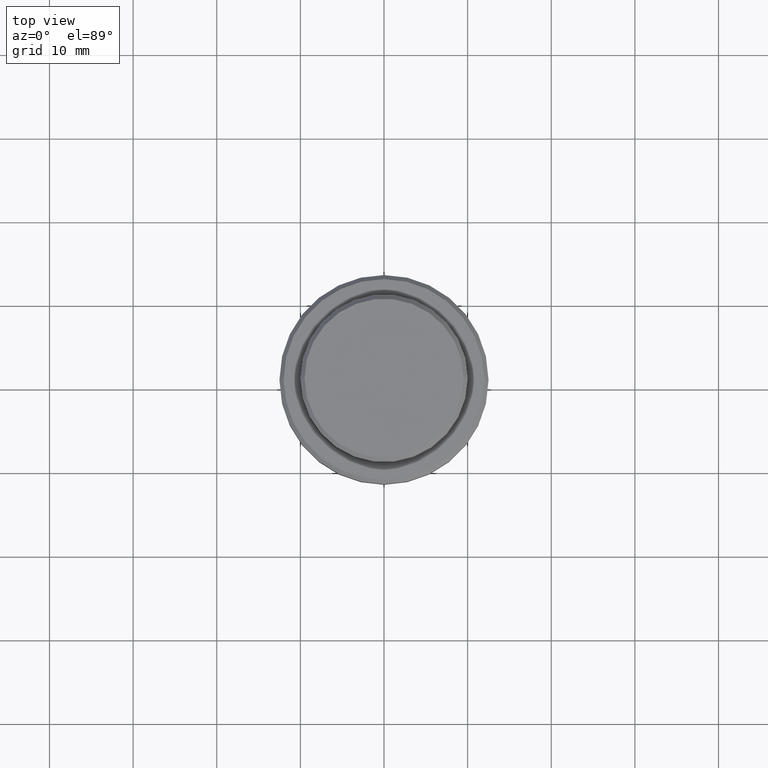
[diagram: clean part render]
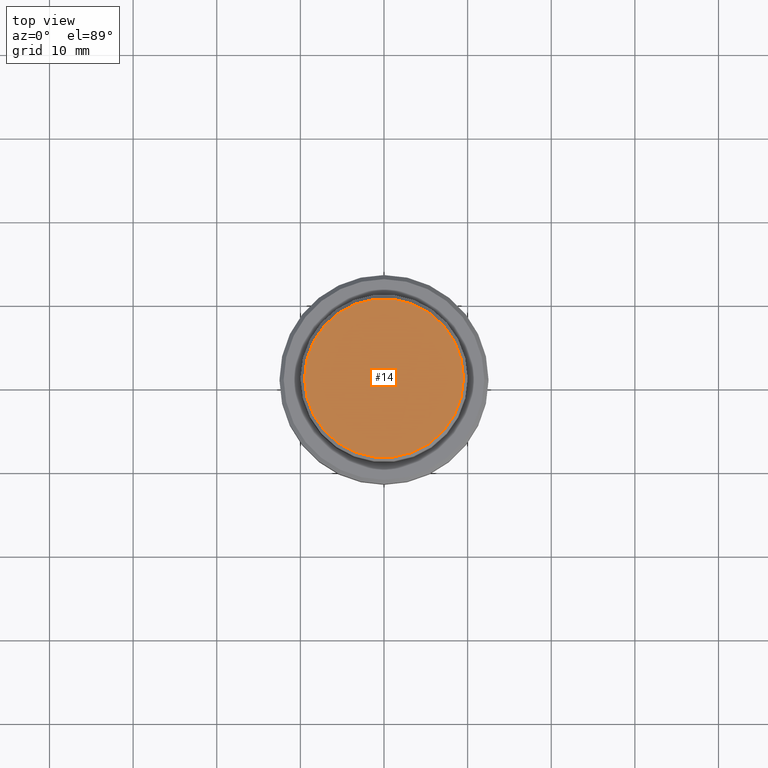
[diagram: same view with one face highlighted and labeled with its STEP entity id]
A machine part, top view. The second image highlights one B-rep face of the part: STEP entity #14.
In plain terms, the highlighted planar face has unit normal (0, -0, 1).
Its self-contained STEP definition (entity closure, byte-faithful):
#12 = AXIS2_PLACEMENT_3D ( 'NONE', #640, #874, #653 ) ;
#14 = ADVANCED_FACE ( 'NONE', ( #1391 ), #1269, .T. ) ;
#77 = CARTESIAN_POINT ( 'NONE',  ( -9.500000000000001776, 0.000000000000000000, 0.000000000000000000 ) ) ;
#151 = DIRECTION ( 'NONE',  ( 1.000000000000000000, 0.000000000000000000, 0.000000000000000000 ) ) ;
#155 = DIRECTION ( 'NONE',  ( 1.000000000000000000, 0.000000000000000000, 0.000000000000000000 ) ) ;
#166 = VERTEX_POINT ( 'NONE', #1011 ) ;
#214 = CIRCLE ( 'NONE', #712, 9.500000000000001776 ) ;
#364 = AXIS2_PLACEMENT_3D ( 'NONE', #406, #847, #151 ) ;
#406 = CARTESIAN_POINT ( 'NONE',  ( 0.000000000000000000, 0.000000000000000000, 0.000000000000000000 ) ) ;
#472 = CARTESIAN_POINT ( 'NONE',  ( 0.000000000000000000, 0.000000000000000000, 0.000000000000000000 ) ) ;
#484 = ORIENTED_EDGE ( 'NONE', *, *, #1196, .T. ) ;
#640 = CARTESIAN_POINT ( 'NONE',  ( 0.000000000000000000, 0.000000000000000000, 0.000000000000000000 ) ) ;
#653 = DIRECTION ( 'NONE',  ( 1.000000000000000000, 0.000000000000000000, 0.000000000000000000 ) ) ;
#712 = AXIS2_PLACEMENT_3D ( 'NONE', #472, #929, #155 ) ;
#747 = ORIENTED_EDGE ( 'NONE', *, *, #748, .T. ) ;
#748 = EDGE_CURVE ( 'NONE', #166, #1384, #988, .T. ) ;
#847 = DIRECTION ( 'NONE',  ( 0.000000000000000000, -0.000000000000000000, 1.000000000000000000 ) ) ;
#874 = DIRECTION ( 'NONE',  ( -0.000000000000000000, -0.000000000000000000, 1.000000000000000000 ) ) ;
#929 = DIRECTION ( 'NONE',  ( -0.000000000000000000, -0.000000000000000000, 1.000000000000000000 ) ) ;
#988 = CIRCLE ( 'NONE', #12, 9.500000000000001776 ) ;
#1011 = CARTESIAN_POINT ( 'NONE',  ( 9.500000000000001776, 1.194030629168669469E-15, 0.000000000000000000 ) ) ;
#1080 = EDGE_LOOP ( 'NONE', ( #484, #747 ) ) ;
#1196 = EDGE_CURVE ( 'NONE', #1384, #166, #214, .T. ) ;
#1269 = PLANE ( 'NONE',  #364 ) ;
#1384 = VERTEX_POINT ( 'NONE', #77 ) ;
#1391 = FACE_OUTER_BOUND ( 'NONE', #1080, .T. ) ;